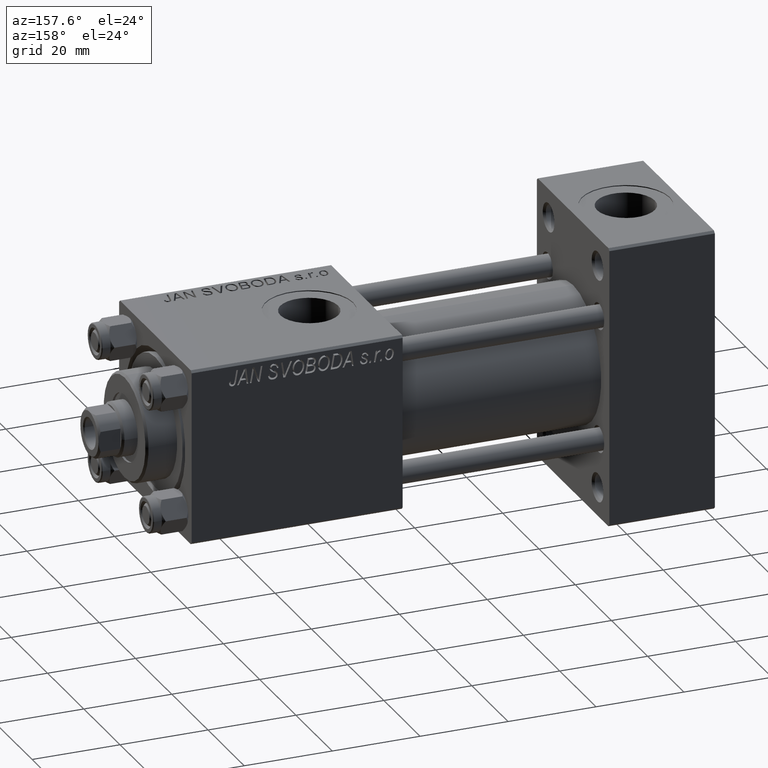
[diagram: clean part render]
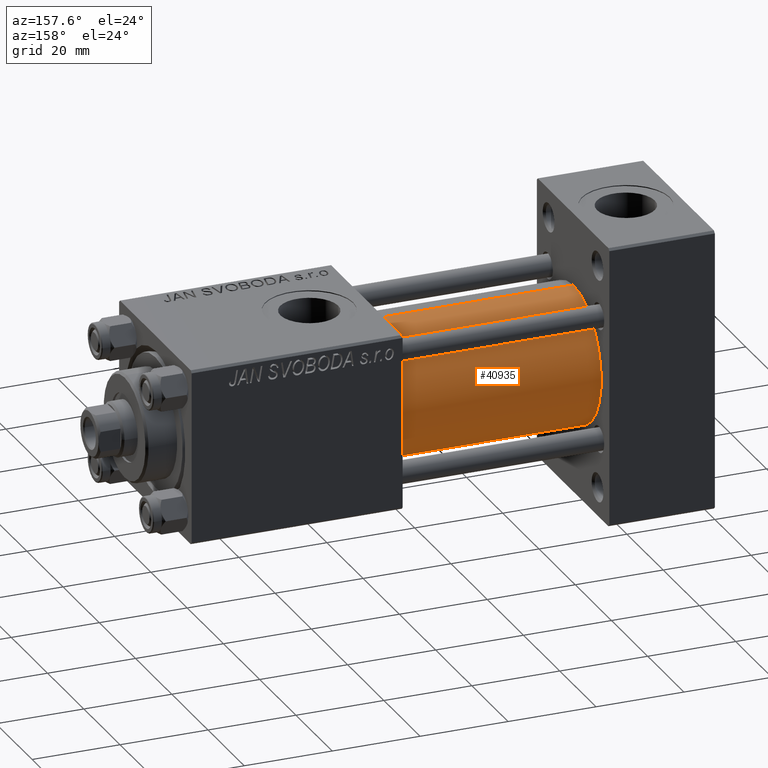
[diagram: same view with one face highlighted and labeled with its STEP entity id]
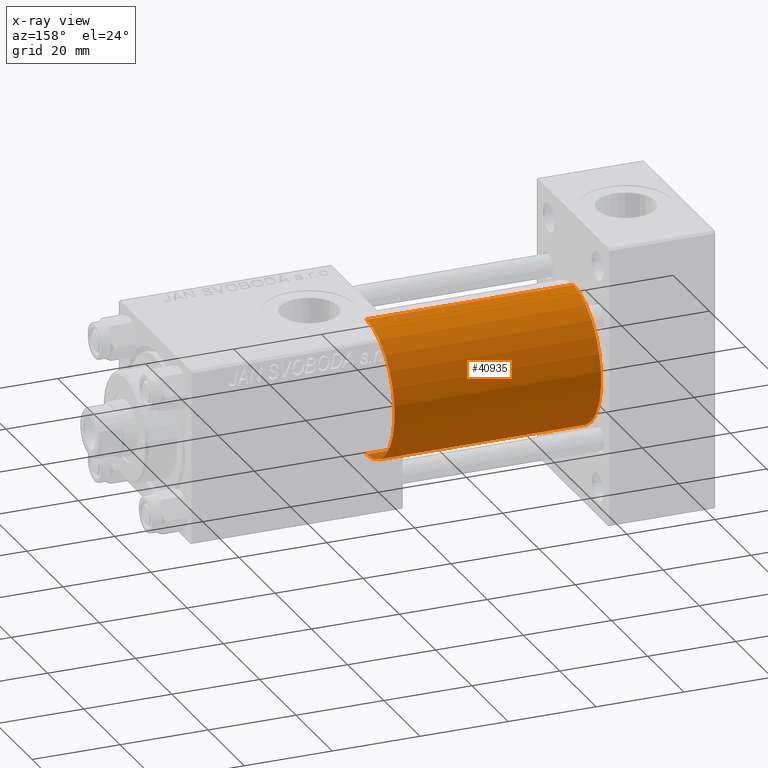
[diagram: x-ray of the same camera — body ghosted, the highlighted face saturated]
A machine part, auxiliary view. The second image highlights one B-rep face of the part: STEP entity #40935.
The next image is the same camera in x-ray: the body ghosted, the highlighted face saturated — about 0% of this face is hidden behind the body in this view.
In plain terms, the highlighted cylindrical surface (partial cylindrical patch) has radius 15.5 mm, axis along (-1, -0, -0).
Its self-contained STEP definition (entity closure, byte-faithful):
#221 = FACE_OUTER_BOUND ( 'NONE', #5971, .T. ) ;
#1924 = CIRCLE ( 'NONE', #43814, 15.50000000000000000 ) ;
#2163 = CARTESIAN_POINT ( 'NONE',  ( 71.00000000000001421, -2.602085213965210642E-15, 15.50000000000000000 ) ) ;
#4023 = CARTESIAN_POINT ( 'NONE',  ( 71.00000000000001421, -2.602085213965210642E-15, 0.000000000000000000 ) ) ;
#4724 = CIRCLE ( 'NONE', #28917, 15.50000000000000000 ) ;
#5971 = EDGE_LOOP ( 'NONE', ( #16968, #20109, #38103, #12277 ) ) ;
#6312 = LINE ( 'NONE', #29526, #24712 ) ;
#8511 = DIRECTION ( 'NONE',  ( 0.000000000000000000, 0.000000000000000000, 1.000000000000000000 ) ) ;
#10532 = CARTESIAN_POINT ( 'NONE',  ( 71.00000000000001421, -7.038826752868131828E-16, -15.50000000000000000 ) ) ;
#11082 = DIRECTION ( 'NONE',  ( 0.000000000000000000, 0.000000000000000000, 1.000000000000000000 ) ) ;
#11578 = CYLINDRICAL_SURFACE ( 'NONE', #31584, 15.50000000000000000 ) ;
#11783 = VERTEX_POINT ( 'NONE', #26497 ) ;
#12277 = ORIENTED_EDGE ( 'NONE', *, *, #24687, .F. ) ;
#12536 = VERTEX_POINT ( 'NONE', #24559 ) ;
#12948 = EDGE_CURVE ( 'NONE', #14832, #12536, #29061, .T. ) ;
#14832 = VERTEX_POINT ( 'NONE', #41141 ) ;
#15319 = VERTEX_POINT ( 'NONE', #2163 ) ;
#16968 = ORIENTED_EDGE ( 'NONE', *, *, #49109, .F. ) ;
#17159 = DIRECTION ( 'NONE',  ( -1.000000000000000000, -0.000000000000000000, -0.000000000000000000 ) ) ;
#19637 = DIRECTION ( 'NONE',  ( 1.000000000000000000, 0.000000000000000000, 0.000000000000000000 ) ) ;
#20109 = ORIENTED_EDGE ( 'NONE', *, *, #12948, .T. ) ;
#24559 = CARTESIAN_POINT ( 'NONE',  ( 24.00000000000000000, -7.038826752868131828E-16, -15.50000000000000000 ) ) ;
#24687 = EDGE_CURVE ( 'NONE', #15319, #11783, #6312, .T. ) ;
#24712 = VECTOR ( 'NONE', #17159, 1000.000000000000000 ) ;
#26497 = CARTESIAN_POINT ( 'NONE',  ( 24.00000000000000000, -2.602085213965210642E-15, 15.50000000000000000 ) ) ;
#28695 = VECTOR ( 'NONE', #45356, 1000.000000000000000 ) ;
#28917 = AXIS2_PLACEMENT_3D ( 'NONE', #31709, #39274, #35499 ) ;
#29061 = LINE ( 'NONE', #10532, #28695 ) ;
#29526 = CARTESIAN_POINT ( 'NONE',  ( 71.00000000000001421, -2.602085213965210642E-15, 15.50000000000000000 ) ) ;
#31584 = AXIS2_PLACEMENT_3D ( 'NONE', #4023, #42376, #11082 ) ;
#31709 = CARTESIAN_POINT ( 'NONE',  ( 71.00000000000001421, -2.602085213965210642E-15, 0.000000000000000000 ) ) ;
#35499 = DIRECTION ( 'NONE',  ( 0.000000000000000000, 0.000000000000000000, -1.000000000000000000 ) ) ;
#38103 = ORIENTED_EDGE ( 'NONE', *, *, #46228, .T. ) ;
#38811 = CARTESIAN_POINT ( 'NONE',  ( 24.00000000000000000, -2.602085213965210642E-15, 0.000000000000000000 ) ) ;
#39274 = DIRECTION ( 'NONE',  ( 1.000000000000000000, 0.000000000000000000, 0.000000000000000000 ) ) ;
#40935 = ADVANCED_FACE ( 'NONE', ( #221 ), #11578, .T. ) ;
#41141 = CARTESIAN_POINT ( 'NONE',  ( 71.00000000000001421, -7.038826752868131828E-16, -15.50000000000000000 ) ) ;
#42376 = DIRECTION ( 'NONE',  ( -1.000000000000000000, -0.000000000000000000, -0.000000000000000000 ) ) ;
#43814 = AXIS2_PLACEMENT_3D ( 'NONE', #38811, #19637, #8511 ) ;
#45356 = DIRECTION ( 'NONE',  ( -1.000000000000000000, -0.000000000000000000, -0.000000000000000000 ) ) ;
#46228 = EDGE_CURVE ( 'NONE', #12536, #11783, #1924, .T. ) ;
#49109 = EDGE_CURVE ( 'NONE', #14832, #15319, #4724, .T. ) ;